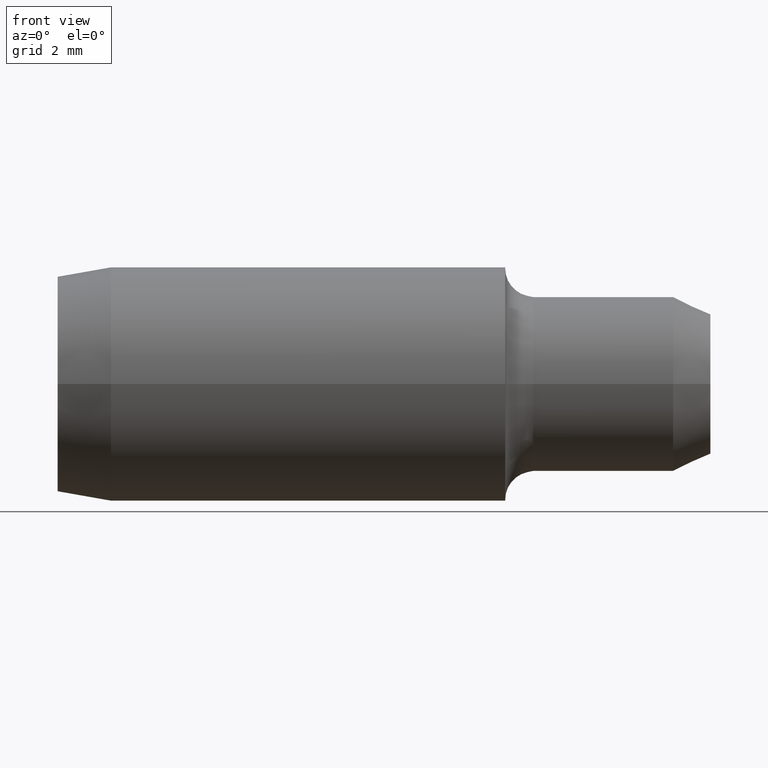
[diagram: clean part render]
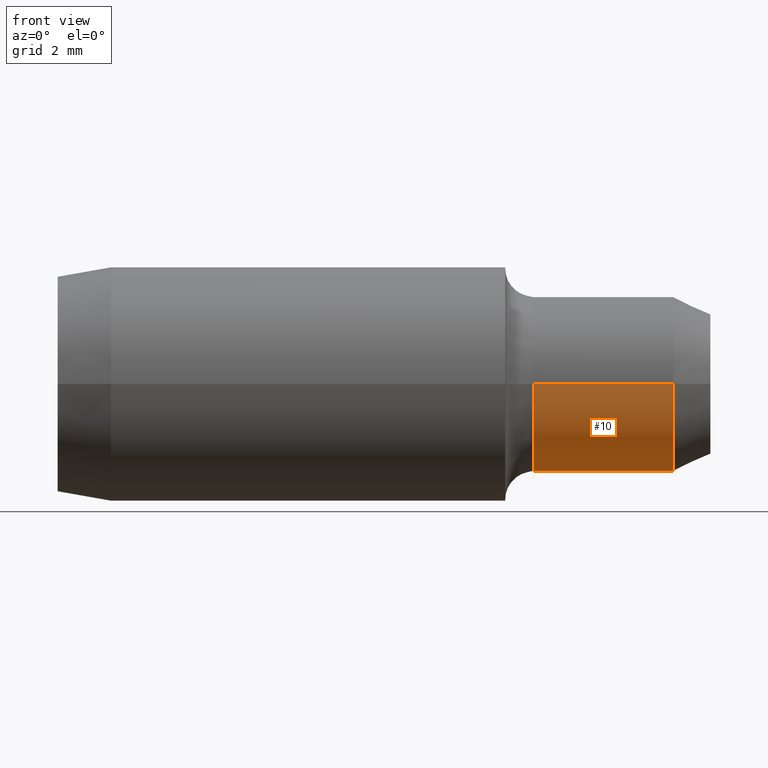
[diagram: same view with one face highlighted and labeled with its STEP entity id]
A machine part, front view. The second image highlights one B-rep face of the part: STEP entity #10.
In plain terms, the highlighted cylindrical surface (partial cylindrical patch) has radius 2.3838 mm, axis along (1, 0, -0).
Its self-contained STEP definition (entity closure, byte-faithful):
#10 = ADVANCED_FACE ( 'NONE', ( #309 ), #231, .T. ) ;
#17 = EDGE_CURVE ( 'NONE', #256, #336, #255, .T. ) ;
#19 = EDGE_CURVE ( 'NONE', #336, #281, #249, .T. ) ;
#20 = EDGE_CURVE ( 'NONE', #343, #281, #250, .T. ) ;
#41 = EDGE_CURVE ( 'NONE', #256, #343, #262, .T. ) ;
#52 = AXIS2_PLACEMENT_3D ( 'NONE', #205, #204, #202 ) ;
#57 = AXIS2_PLACEMENT_3D ( 'NONE', #165, #177, #96 ) ;
#66 = AXIS2_PLACEMENT_3D ( 'NONE', #203, #208, #125 ) ;
#83 = CARTESIAN_POINT ( 'NONE',  ( 0.6599999999999999200, -0.09384999999999987800, 0.0000000000000000000 ) ) ;
#96 = DIRECTION ( 'NONE',  ( 0.0000000000000000000, 1.000000000000000000, 0.0000000000000000000 ) ) ;
#109 = CARTESIAN_POINT ( 'NONE',  ( 0.5100000000000000100, -0.09384999999999994700, 1.149331020999791300E-017 ) ) ;
#125 = DIRECTION ( 'NONE',  ( 0.0000000000000000000, 1.000000000000000000, 0.0000000000000000000 ) ) ;
#146 = CARTESIAN_POINT ( 'NONE',  ( -1.149331020999790800E-017, 0.09384999999999997500, 0.0000000000000000000 ) ) ;
#151 = CARTESIAN_POINT ( 'NONE',  ( 0.6599999999999999200, 0.09385000000000004400, 1.149331020999790400E-017 ) ) ;
#165 = CARTESIAN_POINT ( 'NONE',  ( 0.6599999999999999200, 8.082668874372529300E-017, 0.0000000000000000000 ) ) ;
#172 = CARTESIAN_POINT ( 'NONE',  ( 1.149331020999790800E-017, -0.09384999999999997500, 1.149331020999790800E-017 ) ) ;
#177 = DIRECTION ( 'NONE',  ( 1.000000000000000000, 1.224646799147353200E-016, -0.0000000000000000000 ) ) ;
#181 = CARTESIAN_POINT ( 'NONE',  ( 0.5100000000000000100, 0.09385000000000008600, 0.0000000000000000000 ) ) ;
#200 = DIRECTION ( 'NONE',  ( 1.000000000000000000, 1.224646799147353200E-016, -0.0000000000000000000 ) ) ;
#202 = DIRECTION ( 'NONE',  ( -1.224646799147353500E-016, 1.000000000000000000, 0.0000000000000000000 ) ) ;
#203 = CARTESIAN_POINT ( 'NONE',  ( 0.5100000000000000100, 6.245698675651501100E-017, 0.0000000000000000000 ) ) ;
#204 = DIRECTION ( 'NONE',  ( 1.000000000000000000, 1.224646799147353200E-016, -0.0000000000000000000 ) ) ;
#205 = CARTESIAN_POINT ( 'NONE',  ( 0.0000000000000000000, 0.0000000000000000000, 0.0000000000000000000 ) ) ;
#207 = DIRECTION ( 'NONE',  ( 1.000000000000000000, 1.224646799147353200E-016, -0.0000000000000000000 ) ) ;
#208 = DIRECTION ( 'NONE',  ( 1.000000000000000000, 1.224646799147353200E-016, -0.0000000000000000000 ) ) ;
#231 = CYLINDRICAL_SURFACE ( 'NONE', #52, 0.09384999999999997500 ) ;
#237 = EDGE_LOOP ( 'NONE', ( #334, #314, #326, #339 ) ) ;
#240 = VECTOR ( 'NONE', #207, 39.37007874015748100 ) ;
#248 = VECTOR ( 'NONE', #200, 39.37007874015748100 ) ;
#249 = CIRCLE ( 'NONE', #57, 0.09384999999999996100 ) ;
#250 = LINE ( 'NONE', #146, #240 ) ;
#255 = LINE ( 'NONE', #172, #248 ) ;
#256 = VERTEX_POINT ( 'NONE', #109 ) ;
#262 = CIRCLE ( 'NONE', #66, 0.09385000000000001700 ) ;
#281 = VERTEX_POINT ( 'NONE', #151 ) ;
#309 = FACE_OUTER_BOUND ( 'NONE', #237, .T. ) ;
#314 = ORIENTED_EDGE ( 'NONE', *, *, #41, .T. ) ;
#326 = ORIENTED_EDGE ( 'NONE', *, *, #20, .T. ) ;
#334 = ORIENTED_EDGE ( 'NONE', *, *, #17, .F. ) ;
#336 = VERTEX_POINT ( 'NONE', #83 ) ;
#339 = ORIENTED_EDGE ( 'NONE', *, *, #19, .F. ) ;
#343 = VERTEX_POINT ( 'NONE', #181 ) ;